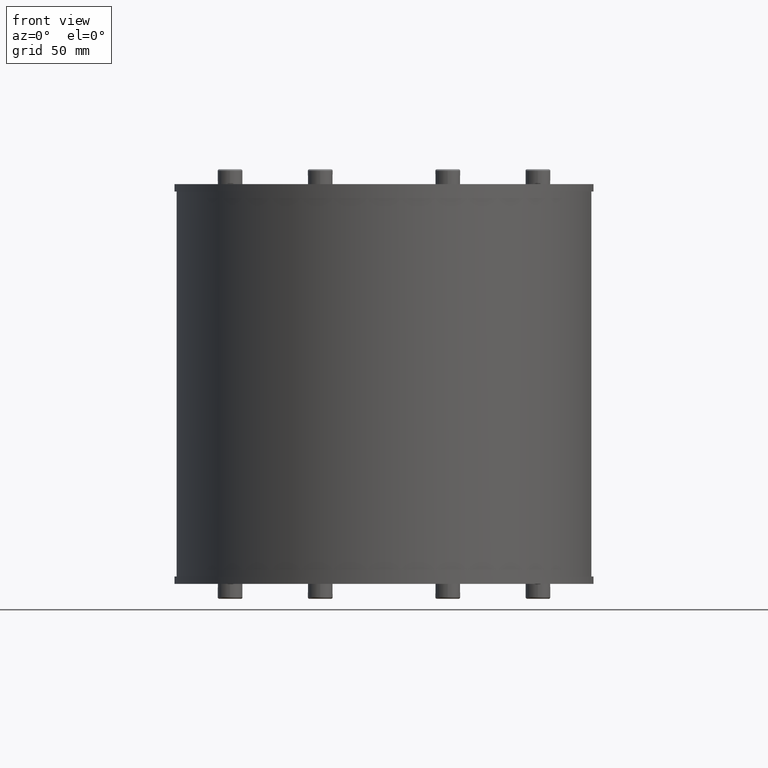
[diagram: clean part render]
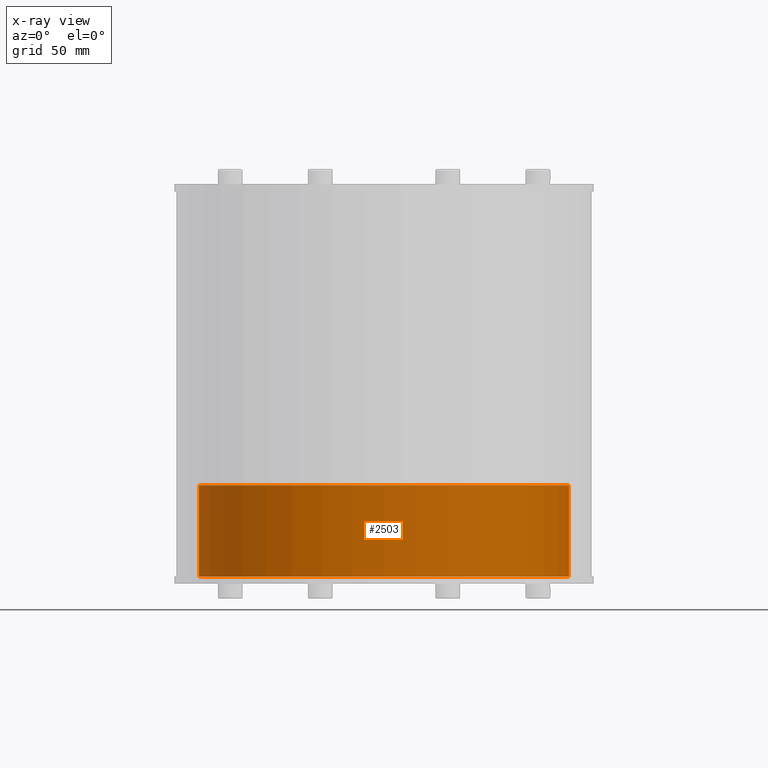
[diagram: x-ray — body ghosted, one internal face saturated and labeled with its STEP entity id]
A machine part, front view, then the same camera in x-ray: the body is ghosted and one INTERNAL B-rep face — a face not visible from any outside direction — is saturated and labeled: STEP entity #2503.
In plain terms, the highlighted cylindrical surface (partial cylindrical patch) has radius 75 mm, axis along (0, -0, -1).
Its self-contained STEP definition (entity closure, byte-faithful):
#2434=CARTESIAN_POINT('',(-75.0,-37.249999999999964,-1.500000000000000));
#2435=VERTEX_POINT('',#2434);
#2436=CARTESIAN_POINT('',(-75.0,-37.249999999999964,-38.500000000000000));
#2437=VERTEX_POINT('',#2436);
#2438=CARTESIAN_POINT('',(-75.0,-37.249999999999964,-1.500000000000000));
#2439=DIRECTION('',(0.0,0.0,-1.0));
#2440=VECTOR('',#2439,37.0);
#2441=LINE('',#2438,#2440);
#2442=EDGE_CURVE('',#2435,#2437,#2441,.T.);
#2471=CARTESIAN_POINT('',(0.0,-37.249999999999972,-38.500000000000000));
#2472=DIRECTION('',(0.0,0.0,1.0));
#2473=DIRECTION('',(1.0,0.0,0.0));
#2474=AXIS2_PLACEMENT_3D('',#2471,#2472,#2473);
#2475=CYLINDRICAL_SURFACE('',#2474,75.0);
#2476=CARTESIAN_POINT('',(75.0,-37.249999999999979,-38.500000000000000));
#2477=VERTEX_POINT('',#2476);
#2478=CARTESIAN_POINT('',(75.0,-37.249999999999979,-1.500000000000000));
#2479=VERTEX_POINT('',#2478);
#2480=CARTESIAN_POINT('',(75.0,-37.249999999999979,-38.500000000000000));
#2481=DIRECTION('',(0.0,0.0,1.0));
#2482=VECTOR('',#2481,37.0);
#2483=LINE('',#2480,#2482);
#2484=EDGE_CURVE('',#2477,#2479,#2483,.T.);
#2485=ORIENTED_EDGE('',*,*,#2484,.F.);
#2486=CARTESIAN_POINT('',(0.0,-37.249999999999972,-38.500000000000000));
#2487=DIRECTION('',(0.0,0.0,-1.0));
#2488=DIRECTION('',(1.0,0.0,0.0));
#2489=AXIS2_PLACEMENT_3D('',#2486,#2487,#2488);
#2490=CIRCLE('',#2489,75.0);
#2491=EDGE_CURVE('',#2437,#2477,#2490,.T.);
#2492=ORIENTED_EDGE('',*,*,#2491,.F.);
#2493=ORIENTED_EDGE('',*,*,#2442,.F.);
#2494=CARTESIAN_POINT('',(0.0,-37.249999999999972,-1.500000000000000));
#2495=DIRECTION('',(0.0,0.0,-1.0));
#2496=DIRECTION('',(1.0,0.0,0.0));
#2497=AXIS2_PLACEMENT_3D('',#2494,#2495,#2496);
#2498=CIRCLE('',#2497,75.0);
#2499=EDGE_CURVE('',#2435,#2479,#2498,.T.);
#2500=ORIENTED_EDGE('',*,*,#2499,.T.);
#2501=EDGE_LOOP('',(#2485,#2492,#2493,#2500));
#2502=FACE_OUTER_BOUND('',#2501,.F.);
#2503=ADVANCED_FACE('',(#2502),#2475,.F.);